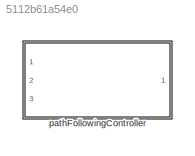
MODEL slx_5112b61a54e0
KIND library
CONFIG AbsTol = auto
CONFIG EnableMultiTasking = off
CONFIG FixedStep = auto
CONFIG MaxStep = auto
CONFIG MinStep = auto
CONFIG RelTol = 1e-3
CONFIG SampleTimeConstraint = Unconstrained
CONFIG SolverName = VariableStepAuto
CONFIG StartTime = 0.0
CONFIG StopTime = 10.0
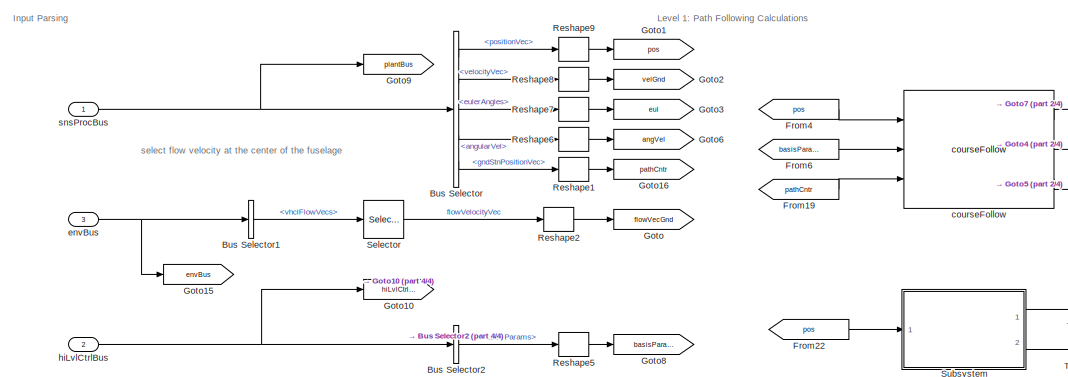
[diagram: pathFollowingController - part 1/4, middle left region]
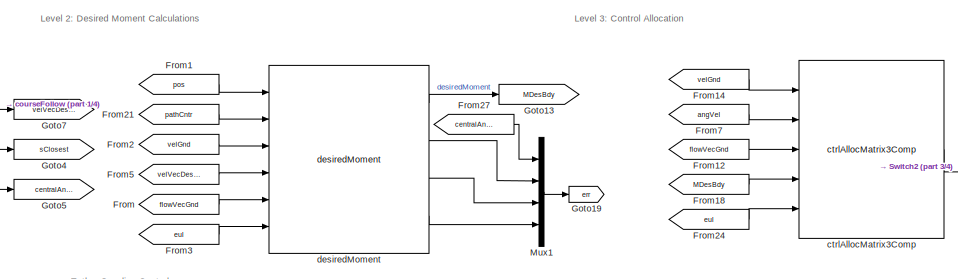
[diagram: pathFollowingController - part 2/4, top center region]
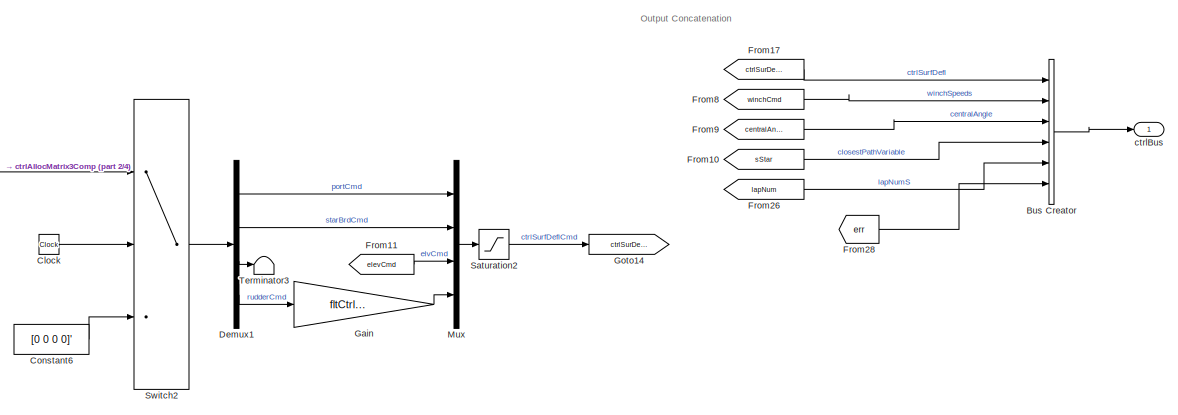
[diagram: pathFollowingController - part 3/4, middle right region]
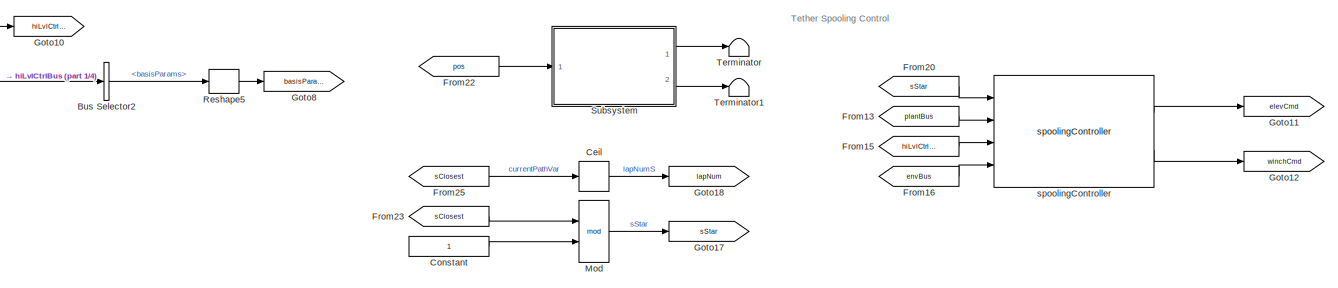
[diagram: pathFollowingController - part 4/4, bottom left region]
BLOCK [SubSystem] pathFollowingController
  InitFcn = initializeBussesFromBlock(gcb)
  LoadFcn = initializeBussesFromBlock(gcb)
  MinAlgLoopOccurrences = on
  Ports = [3, 1]
  RequestExecContextInheritance = off
  StartFcn = initializeBussesFromBlock(gcb)
  VariantControl = strcmpi(FLIGHTCONTROLLER,'pathFollowingController')
BLOCK [BusCreator] pathFollowingController/Bus Creator
  DisplayOption = bar
  InheritFromInputs = off
  Inputs = 6
  OutDataTypeStr = Bus: fltCtrlBus
  Ports = [6, 1]
BLOCK [BusSelector] pathFollowingController/Bus Selector
  OutputSignals = positionVec,velocityVec,eulerAngles,angularVel,gndStnPositionVec
  Ports = [1, 5]
BLOCK [BusSelector] pathFollowingController/Bus Selector1
  OutputSignals = vhclFlowVecs
  Ports = [1, 1]
BLOCK [BusSelector] pathFollowingController/Bus Selector2
  OutputSignals = basisParams
  Ports = [1, 1]
BLOCK [Rounding] pathFollowingController/Ceil
  Operator = ceil
BLOCK [Clock] pathFollowingController/Clock
BLOCK [Constant] pathFollowingController/Constant
BLOCK [Constant] pathFollowingController/Constant6
  Value = [0 0 0 0]'
BLOCK [Demux] pathFollowingController/Demux1
  Ports = [1, 4]
BLOCK [From] pathFollowingController/From
  GotoTag = flowVecGnd
BLOCK [From] pathFollowingController/From1
  GotoTag = pos
BLOCK [From] pathFollowingController/From10
  GotoTag = sStar
BLOCK [From] pathFollowingController/From11
  GotoTag = elevCmd
BLOCK [From] pathFollowingController/From12
  GotoTag = flowVecGnd
BLOCK [From] pathFollowingController/From13
  GotoTag = plantBus
BLOCK [From] pathFollowingController/From14
  GotoTag = velGnd
BLOCK [From] pathFollowingController/From15
  GotoTag = hiLvlCtrlBus
BLOCK [From] pathFollowingController/From16
  GotoTag = envBus
BLOCK [From] pathFollowingController/From17
  GotoTag = ctrlSurDefl
BLOCK [From] pathFollowingController/From18
  GotoTag = MDesBdy
BLOCK [From] pathFollowingController/From19
  GotoTag = pathCntr
BLOCK [From] pathFollowingController/From2
  GotoTag = velGnd
BLOCK [From] pathFollowingController/From20
  GotoTag = sStar
BLOCK [From] pathFollowingController/From21
  GotoTag = pathCntr
BLOCK [From] pathFollowingController/From22
  GotoTag = pos
BLOCK [From] pathFollowingController/From23
  GotoTag = sClosest
BLOCK [From] pathFollowingController/From24
  GotoTag = eul
BLOCK [From] pathFollowingController/From25
  GotoTag = sClosest
BLOCK [From] pathFollowingController/From26
  GotoTag = lapNum
BLOCK [From] pathFollowingController/From27
  GotoTag = centralAngle
BLOCK [From] pathFollowingController/From28
  GotoTag = err
BLOCK [From] pathFollowingController/From3
  GotoTag = eul
BLOCK [From] pathFollowingController/From4
  GotoTag = pos
BLOCK [From] pathFollowingController/From5
  GotoTag = velVecDesGnd
BLOCK [From] pathFollowingController/From6
  GotoTag = basisParams
BLOCK [From] pathFollowingController/From7
  GotoTag = angVel
BLOCK [From] pathFollowingController/From8
  GotoTag = winchCmd
BLOCK [From] pathFollowingController/From9
  GotoTag = centralAngle
BLOCK [Gain] pathFollowingController/Gain
  Gain = fltCtrl.rudderGain.Value
BLOCK [Goto] pathFollowingController/Goto
  GotoTag = flowVecGnd
BLOCK [Goto] pathFollowingController/Goto1
  GotoTag = pos
BLOCK [Goto] pathFollowingController/Goto10
  GotoTag = hiLvlCtrlBus
BLOCK [Goto] pathFollowingController/Goto11
  GotoTag = elevCmd
BLOCK [Goto] pathFollowingController/Goto12
  GotoTag = winchCmd
BLOCK [Goto] pathFollowingController/Goto13
  GotoTag = MDesBdy
BLOCK [Goto] pathFollowingController/Goto14
  GotoTag = ctrlSurDefl
BLOCK [Goto] pathFollowingController/Goto15
  GotoTag = envBus
BLOCK [Goto] pathFollowingController/Goto16
  GotoTag = pathCntr
BLOCK [Goto] pathFollowingController/Goto17
  GotoTag = sStar
BLOCK [Goto] pathFollowingController/Goto18
  GotoTag = lapNum
BLOCK [Goto] pathFollowingController/Goto19
  GotoTag = err
BLOCK [Goto] pathFollowingController/Goto2
  GotoTag = velGnd
BLOCK [Goto] pathFollowingController/Goto3
  GotoTag = eul
BLOCK [Goto] pathFollowingController/Goto4
  GotoTag = sClosest
BLOCK [Goto] pathFollowingController/Goto5
  GotoTag = centralAngle
BLOCK [Goto] pathFollowingController/Goto6
  GotoTag = angVel
BLOCK [Goto] pathFollowingController/Goto7
  GotoTag = velVecDesGnd
BLOCK [Goto] pathFollowingController/Goto8
  GotoTag = basisParams
BLOCK [Goto] pathFollowingController/Goto9
  GotoTag = plantBus
BLOCK [Math] pathFollowingController/Mod
  Operator = mod
  Ports = [2, 1]
BLOCK [Mux] pathFollowingController/Mux
  DisplayOption = bar
  Ports = [4, 1]
BLOCK [Mux] pathFollowingController/Mux1
  DisplayOption = bar
  Ports = [4, 1]
BLOCK [Reshape] pathFollowingController/Reshape1
  OutputDimensionality = Column vector (2-D)
  Ports = [1, 1]
BLOCK [Reshape] pathFollowingController/Reshape2
  OutputDimensionality = Column vector (2-D)
  Ports = [1, 1]
BLOCK [Reshape] pathFollowingController/Reshape5
  OutputDimensionality = Column vector (2-D)
  Ports = [1, 1]
BLOCK [Reshape] pathFollowingController/Reshape6
  OutputDimensionality = Column vector (2-D)
  Ports = [1, 1]
BLOCK [Reshape] pathFollowingController/Reshape7
  OutputDimensionality = Column vector (2-D)
  Ports = [1, 1]
BLOCK [Reshape] pathFollowingController/Reshape8
  OutputDimensionality = Column vector (2-D)
  Ports = [1, 1]
BLOCK [Reshape] pathFollowingController/Reshape9
  OutputDimensionality = Column vector (2-D)
  Ports = [1, 1]
BLOCK [Saturate] pathFollowingController/Saturation2
  LowerLimit = pathCtrl.controlSigMax.lowerLimit.Value
  UpperLimit = pathCtrl.controlSigMax.upperLimit.Value
BLOCK [Selector] pathFollowingController/Selector
  IndexOptions = Select all,Index vector (dialog)
  Indices = [1 3],5
  InputPortWidth = 3
  NumberOfDimensions = 2
  OutputSizes = 1,1
  Ports = [1, 1]
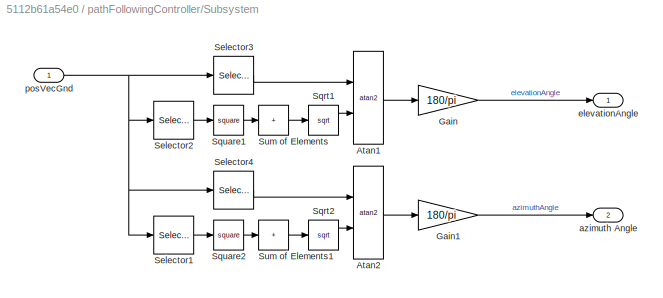
BLOCK [SubSystem] pathFollowingController/Subsystem
  Ports = [1, 2]
  RequestExecContextInheritance = off
BLOCK [Trigonometry] pathFollowingController/Subsystem/Atan1
  Operator = atan2
  Ports = [2, 1]
BLOCK [Trigonometry] pathFollowingController/Subsystem/Atan2
  Operator = atan2
  Ports = [2, 1]
BLOCK [Gain] pathFollowingController/Subsystem/Gain
  Gain = 180/pi
BLOCK [Gain] pathFollowingController/Subsystem/Gain1
  Gain = 180/pi
BLOCK [Selector] pathFollowingController/Subsystem/Selector1
  IndexOptions = Index vector (dialog)
  Indices = 1
  InputPortWidth = 3
  OutputSizes = 1
  Ports = [1, 1]
BLOCK [Selector] pathFollowingController/Subsystem/Selector2
  IndexOptions = Index vector (dialog)
  Indices = [1 2]
  InputPortWidth = 3
  OutputSizes = 1
  Ports = [1, 1]
BLOCK [Selector] pathFollowingController/Subsystem/Selector3
  IndexOptions = Index vector (dialog)
  Indices = 3
  InputPortWidth = 3
  OutputSizes = 1
  Ports = [1, 1]
BLOCK [Selector] pathFollowingController/Subsystem/Selector4
  IndexOptions = Index vector (dialog)
  Indices = 2
  InputPortWidth = 3
  OutputSizes = 1
  Ports = [1, 1]
BLOCK [Sqrt] pathFollowingController/Subsystem/Sqrt1
BLOCK [Sqrt] pathFollowingController/Subsystem/Sqrt2
BLOCK [Math] pathFollowingController/Subsystem/Square1
  Operator = square
  Ports = [1, 1]
  SignedPower = on
BLOCK [Math] pathFollowingController/Subsystem/Square2
  Operator = square
  Ports = [1, 1]
  SignedPower = on
BLOCK [Sum] pathFollowingController/Subsystem/Sum of Elements
  IconShape = rectangular
  Inputs = +
  Ports = [1, 1]
BLOCK [Sum] pathFollowingController/Subsystem/Sum of Elements1
  IconShape = rectangular
  Inputs = +
  Ports = [1, 1]
BLOCK [Outport] pathFollowingController/Subsystem/azimuth Angle
  Port = 2
BLOCK [Outport] pathFollowingController/Subsystem/elevationAngle
BLOCK [Inport] pathFollowingController/Subsystem/posVecGnd
BLOCK [Switch] pathFollowingController/Switch2
  Criteria = u2 > Threshold
  InputSameDT = off
  SaturateOnIntegerOverflow = off
  Threshold = pathCtrl.startControl.Value
BLOCK [Terminator] pathFollowingController/Terminator
BLOCK [Terminator] pathFollowingController/Terminator1
BLOCK [Terminator] pathFollowingController/Terminator3
BLOCK [Reference] pathFollowingController/courseFollow  REF=courseFollow_cl/courseFollow
  Ports = [3, 3]
  SourceBlock = courseFollow_cl/courseFollow
  SourceType = SubSystem
BLOCK [Reference] pathFollowingController/ctrlAllocMatrix3Comp  REF=ctrlAllocMatrix3Comp_cl/ctrlAllocMatrix3Comp
  Ports = [5, 1]
  SourceBlock = ctrlAllocMatrix3Comp_cl/ctrlAllocMatrix3Comp
BLOCK [Outport] pathFollowingController/ctrlBus
  OutDataTypeStr = Bus: fltCtrlBus
  VectorParamsAs1DForOutWhenUnconnected = off
BLOCK [Reference] pathFollowingController/desiredMoment  REF=setpointToOutput_cl/desiredMoment
  Ports = [6, 4]
  SourceBlock = setpointToOutput_cl/desiredMoment
  SourceType = SubSystem
BLOCK [Inport] pathFollowingController/envBus
  OutDataTypeStr = Bus: envBus
  Port = 3
BLOCK [Inport] pathFollowingController/hiLvlCtrlBus
  OutDataTypeStr = Bus: hiLvlCtrlBus
  Port = 2
BLOCK [Inport] pathFollowingController/snsProcBus
  OutDataTypeStr = Bus: sensorsProcessingBus
BLOCK [Reference] pathFollowingController/spoolingController  REF=spoolingController_cl/spoolingController
  Ports = [4, 2]
  SourceBlock = spoolingController_cl/spoolingController
  SourceType = SubSystem
ANNOTATION pathFollowingController: Input Parsing
ANNOTATION pathFollowingController: Level 1: Path Following Calculations
ANNOTATION pathFollowingController: Level 2: Desired Moment Calculations
ANNOTATION pathFollowingController: Level 3: Control Allocation
ANNOTATION pathFollowingController: Output Concatenation
ANNOTATION pathFollowingController: Tether Spooling Control
ANNOTATION pathFollowingController: select flow velocity at the center of the fuselage
LINE pathFollowingController/Bus Creator:1 -> pathFollowingController/ctrlBus:1
LINE pathFollowingController/Bus Selector1:1 -> pathFollowingController/Selector:1
LINE pathFollowingController/Bus Selector2:1 -> pathFollowingController/Reshape5:1
LINE pathFollowingController/Bus Selector:1 -> pathFollowingController/Reshape9:1
LINE pathFollowingController/Bus Selector:2 -> pathFollowingController/Reshape8:1
LINE pathFollowingController/Bus Selector:3 -> pathFollowingController/Reshape7:1
LINE pathFollowingController/Bus Selector:4 -> pathFollowingController/Reshape6:1
LINE pathFollowingController/Bus Selector:5 -> pathFollowingController/Reshape1:1
LINE pathFollowingController/Ceil:1 -> pathFollowingController/Goto18:1
LINE pathFollowingController/Clock:1 -> pathFollowingController/Switch2:2
LINE pathFollowingController/Constant6:1 -> pathFollowingController/Switch2:3
LINE pathFollowingController/Constant:1 -> pathFollowingController/Mod:2
LINE pathFollowingController/Demux1:1 -> pathFollowingController/Mux:1
LINE pathFollowingController/Demux1:2 -> pathFollowingController/Mux:2
LINE pathFollowingController/Demux1:3 -> pathFollowingController/Terminator3:1
LINE pathFollowingController/Demux1:4 -> pathFollowingController/Gain:1
LINE pathFollowingController/From10:1 -> pathFollowingController/Bus Creator:4
LINE pathFollowingController/From11:1 -> pathFollowingController/Mux:3
LINE pathFollowingController/From12:1 -> pathFollowingController/ctrlAllocMatrix3Comp:3
LINE pathFollowingController/From13:1 -> pathFollowingController/spoolingController:2
LINE pathFollowingController/From14:1 -> pathFollowingController/ctrlAllocMatrix3Comp:1
LINE pathFollowingController/From15:1 -> pathFollowingController/spoolingController:3
LINE pathFollowingController/From16:1 -> pathFollowingController/spoolingController:4
LINE pathFollowingController/From17:1 -> pathFollowingController/Bus Creator:1
LINE pathFollowingController/From18:1 -> pathFollowingController/ctrlAllocMatrix3Comp:4
LINE pathFollowingController/From19:1 -> pathFollowingController/courseFollow:3
LINE pathFollowingController/From1:1 -> pathFollowingController/desiredMoment:1
LINE pathFollowingController/From20:1 -> pathFollowingController/spoolingController:1
LINE pathFollowingController/From21:1 -> pathFollowingController/desiredMoment:2
LINE pathFollowingController/From22:1 -> pathFollowingController/Subsystem:1
LINE pathFollowingController/From23:1 -> pathFollowingController/Mod:1
LINE pathFollowingController/From24:1 -> pathFollowingController/ctrlAllocMatrix3Comp:5
LINE pathFollowingController/From25:1 -> pathFollowingController/Ceil:1
LINE pathFollowingController/From26:1 -> pathFollowingController/Bus Creator:5
LINE pathFollowingController/From27:1 -> pathFollowingController/Mux1:1
LINE pathFollowingController/From28:1 -> pathFollowingController/Bus Creator:6
LINE pathFollowingController/From2:1 -> pathFollowingController/desiredMoment:3
LINE pathFollowingController/From3:1 -> pathFollowingController/desiredMoment:6
LINE pathFollowingController/From4:1 -> pathFollowingController/courseFollow:1
LINE pathFollowingController/From5:1 -> pathFollowingController/desiredMoment:4
LINE pathFollowingController/From6:1 -> pathFollowingController/courseFollow:2
LINE pathFollowingController/From7:1 -> pathFollowingController/ctrlAllocMatrix3Comp:2
LINE pathFollowingController/From8:1 -> pathFollowingController/Bus Creator:2
LINE pathFollowingController/From9:1 -> pathFollowingController/Bus Creator:3
LINE pathFollowingController/From:1 -> pathFollowingController/desiredMoment:5
LINE pathFollowingController/Gain:1 -> pathFollowingController/Mux:4
LINE pathFollowingController/Mod:1 -> pathFollowingController/Goto17:1
LINE pathFollowingController/Mux1:1 -> pathFollowingController/Goto19:1
LINE pathFollowingController/Mux:1 -> pathFollowingController/Saturation2:1
LINE pathFollowingController/Reshape1:1 -> pathFollowingController/Goto16:1
LINE pathFollowingController/Reshape2:1 -> pathFollowingController/Goto:1
LINE pathFollowingController/Reshape5:1 -> pathFollowingController/Goto8:1
LINE pathFollowingController/Reshape6:1 -> pathFollowingController/Goto6:1
LINE pathFollowingController/Reshape7:1 -> pathFollowingController/Goto3:1
LINE pathFollowingController/Reshape8:1 -> pathFollowingController/Goto2:1
LINE pathFollowingController/Reshape9:1 -> pathFollowingController/Goto1:1
LINE pathFollowingController/Saturation2:1 -> pathFollowingController/Goto14:1
LINE pathFollowingController/Selector:1 -> pathFollowingController/Reshape2:1
LINE pathFollowingController/Subsystem/Atan1:1 -> pathFollowingController/Subsystem/Gain:1
LINE pathFollowingController/Subsystem/Atan2:1 -> pathFollowingController/Subsystem/Gain1:1
LINE pathFollowingController/Subsystem/Gain1:1 -> pathFollowingController/Subsystem/azimuth Angle:1
LINE pathFollowingController/Subsystem/Gain:1 -> pathFollowingController/Subsystem/elevationAngle:1
LINE pathFollowingController/Subsystem/Selector1:1 -> pathFollowingController/Subsystem/Square2:1
LINE pathFollowingController/Subsystem/Selector2:1 -> pathFollowingController/Subsystem/Square1:1
LINE pathFollowingController/Subsystem/Selector3:1 -> pathFollowingController/Subsystem/Atan1:1
LINE pathFollowingController/Subsystem/Selector4:1 -> pathFollowingController/Subsystem/Atan2:1
LINE pathFollowingController/Subsystem/Sqrt1:1 -> pathFollowingController/Subsystem/Atan1:2
LINE pathFollowingController/Subsystem/Sqrt2:1 -> pathFollowingController/Subsystem/Atan2:2
LINE pathFollowingController/Subsystem/Square1:1 -> pathFollowingController/Subsystem/Sum of Elements:1
LINE pathFollowingController/Subsystem/Square2:1 -> pathFollowingController/Subsystem/Sum of Elements1:1
LINE pathFollowingController/Subsystem/Sum of Elements1:1 -> pathFollowingController/Subsystem/Sqrt2:1
LINE pathFollowingController/Subsystem/Sum of Elements:1 -> pathFollowingController/Subsystem/Sqrt1:1
NET pathFollowingController/Subsystem/posVecGnd:1 -> pathFollowingController/Subsystem/Selector1:1, pathFollowingController/Subsystem/Selector2:1, pathFollowingController/Subsystem/Selector3:1, pathFollowingController/Subsystem/Selector4:1
LINE pathFollowingController/Subsystem:1 -> pathFollowingController/Terminator:1
LINE pathFollowingController/Subsystem:2 -> pathFollowingController/Terminator1:1
LINE pathFollowingController/Switch2:1 -> pathFollowingController/Demux1:1
LINE pathFollowingController/courseFollow:1 -> pathFollowingController/Goto7:1
LINE pathFollowingController/courseFollow:2 -> pathFollowingController/Goto4:1
LINE pathFollowingController/courseFollow:3 -> pathFollowingController/Goto5:1
LINE pathFollowingController/ctrlAllocMatrix3Comp:1 -> pathFollowingController/Switch2:1
LINE pathFollowingController/desiredMoment:1 -> pathFollowingController/Goto13:1
LINE pathFollowingController/desiredMoment:2 -> pathFollowingController/Mux1:2
LINE pathFollowingController/desiredMoment:3 -> pathFollowingController/Mux1:3
LINE pathFollowingController/desiredMoment:4 -> pathFollowingController/Mux1:4
NET pathFollowingController/envBus:1 -> pathFollowingController/Bus Selector1:1, pathFollowingController/Goto15:1
NET pathFollowingController/hiLvlCtrlBus:1 -> pathFollowingController/Bus Selector2:1, pathFollowingController/Goto10:1
NET pathFollowingController/snsProcBus:1 -> pathFollowingController/Bus Selector:1, pathFollowingController/Goto9:1
LINE pathFollowingController/spoolingController:1 -> pathFollowingController/Goto11:1
LINE pathFollowingController/spoolingController:2 -> pathFollowingController/Goto12:1
note: NET lines group one-source signal fan-out (src -> all destinations, sorted); 1:1 wires keep LINE
